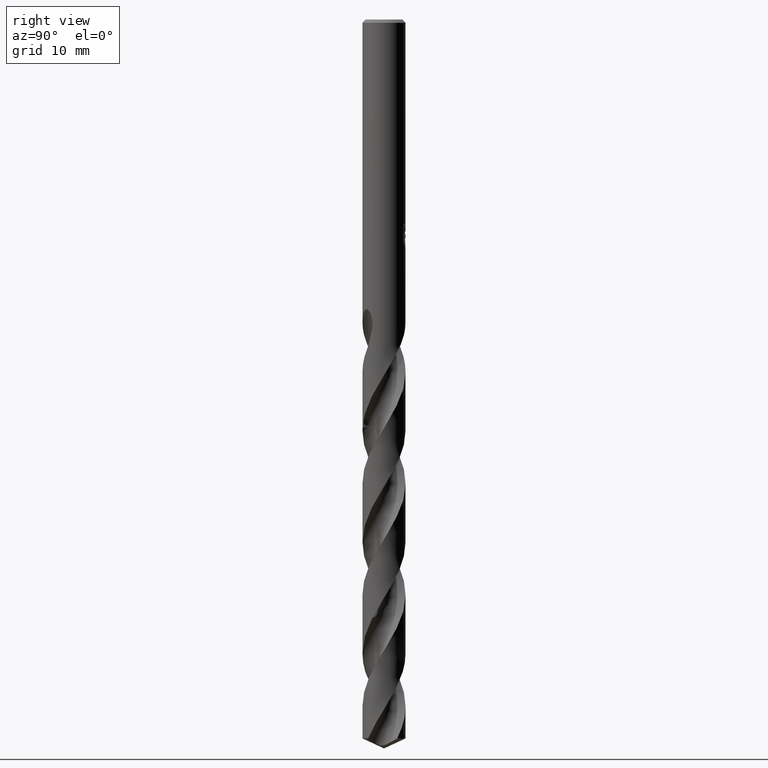
[diagram: clean part render]
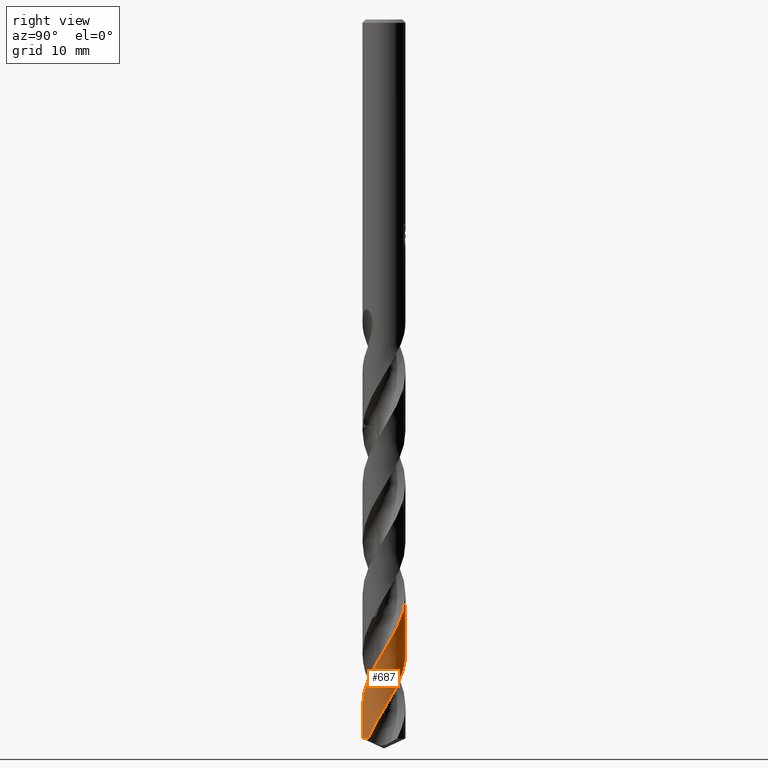
[diagram: same view with one face highlighted and labeled with its STEP entity id]
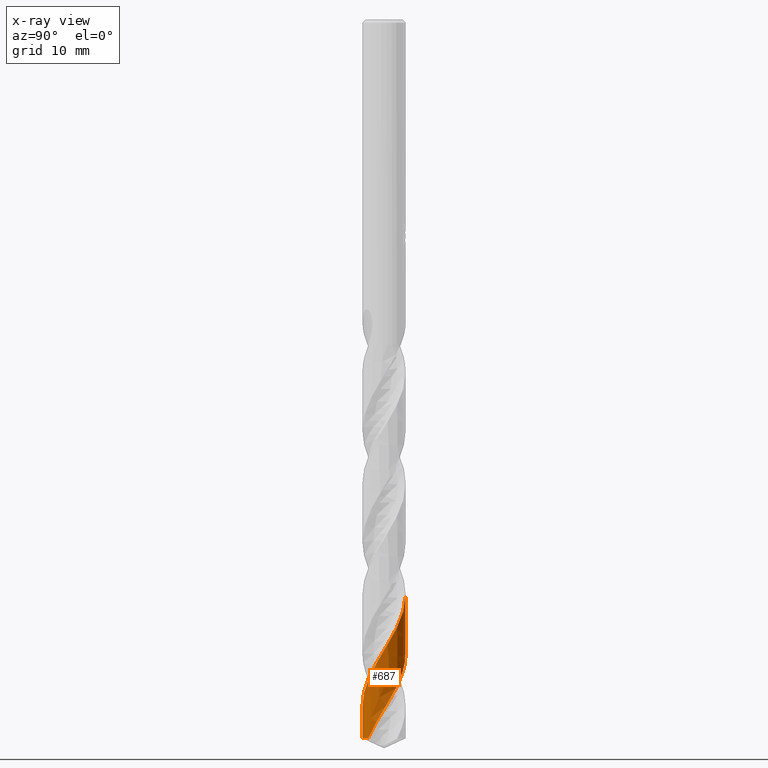
[diagram: x-ray of the same camera — body ghosted, the highlighted face saturated]
A machine part, right view. The second image highlights one B-rep face of the part: STEP entity #687.
The next image is the same camera in x-ray: the body ghosted, the highlighted face saturated — about 0% of this face is hidden behind the body in this view.
In plain terms, the highlighted conical surface has half-angle 0 deg.
Its self-contained STEP definition (entity closure, byte-faithful):
#353=VERTEX_POINT('',#863);
#367=VERTEX_POINT('',#878);
#377=EDGE_CURVE('',#627,#353,#889,.T.);
#441=EDGE_CURVE('',#709,#367,#959,.T.);
#501=EDGE_CURVE('',#555,#367,#1022,.T.);
#555=VERTEX_POINT('',#1080);
#559=EDGE_CURVE('',#627,#709,#1084,.T.);
#627=VERTEX_POINT('',#1157);
#687=ADVANCED_FACE('',(#1224),#1225,.T.);
#709=VERTEX_POINT('',#1250);
#727=EDGE_CURVE('',#555,#353,#1268,.T.);
#863=CARTESIAN_POINT('',(-5.71960297841492E-015,2.74997842835438,-80.8848795938352));
#878=CARTESIAN_POINT('',(-1.60807976975999E-015,-2.74999180907321,-87.60436267066));
#889=B_SPLINE_CURVE_WITH_KNOTS('',3,(#2371,#2372,#2373,#2374,#2375,#2376,#2377,#2378,#2379,#2380,#2381,#2382,#2383,#2384,#2385,#2386,#2387,#2388,#2389,#2390,#2391,#2392,#2393,#2394,#2395,#2396,#2397,#2398,#2399,#2400,#2401,#2402,#2403,#2404,#2405,#2406,#2407,#2408,#2409,#2410,#2411,#2412,#2413,#2414,#2415,#2416,#2417,#2418,#2419,#2420,#2421,#2422,#2423,#2424,#2425,#2426,#2427,#2428,#2429,#2430,#2431,#2432,#2433,#2434,#2435,#2436,#2437,#2438,#2439,#2440,#2441,#2442,#2443,#2444,#2445,#2446,#2447,#2448,#2449,#2450,#2451,#2452,#2453,#2454,#2455,#2456,#2457,#2458,#2459,#2460,#2461,#2462,#2463,#2464,#2465,#2466,#2467,#2468,#2469,#2470,#2471,#2472,#2473,#2474,#2475,#2476,#2477,#2478,#2479,#2480,#2481,#2482,#2483,#2484,#2485,#2486,#2487,#2488,#2489,#2490,#2491,#2492,#2493,#2494,#2495,#2496,#2497,#2498,#2499,#2500,#2501,#2502,#2503,#2504,#2505,#2506,#2507,#2508,#2509,#2510,#2511,#2512,#2513,#2514,#2515,#2516,#2517,#2518,#2519,#2520,#2521,#2522),.UNSPECIFIED.,.F.,.F.,(4,2,2,2,2,2,2,2,2,2,2,2,2,2,2,2,2,2,2,2,2,2,2,2,2,2,2,2,2,2,2,2,2,2,2,2,2,2,2,2,2,2,2,2,2,2,2,2,2,2,2,2,2,2,2,2,2,2,2,2,2,2,2,2,2,2,2,2,2,2,2,2,2,2,2,4),(0.0,0.836457386252124,1.64336906170527,2.58140408176141,3.39202797867914,3.8632473874037,4.603721721074,5.53278731690787,6.46107956921465,7.38981995754916,8.32079524812675,9.21409512558455,10.1498417042334,10.9508738278715,11.4228714910603,12.1586908143471,13.0894914349798,14.018748276323,14.948969436829,15.8809501525893,16.7848942759637,17.7211258031466,18.5306040966142,19.0031230386895,19.7211621967107,20.6530811255594,21.5833301175112,22.514676203557,23.4476488185122,24.3545356493646,25.2916730528357,26.1015012364497,26.5978458442551,27.2951533909863,28.2173604047921,29.136989204381,30.0606514461484,30.9963703254146,32.3768759246345,32.6047586690443,34.3489812172339,34.5726663833572,35.5759238982151,36.0492846451576,36.7773644813372,37.7109175588367,38.6428289742409,39.575755403502,40.5104428497366,41.4158604190065,42.3549204551273,43.1647967079782,43.6387172254562,44.3615965502283,45.2963108807289,46.2292834464353,47.1633848369814,48.0991190162929,49.0103231174039,49.9500821450938,50.8963226501906,51.8153023943905,53.3680154800941,53.4363096654608,54.3998333752756,56.5903315555254,57.4884823687314,57.892101710963,58.1227814348603,58.2561522191751,58.3096711360387,58.3605981844703,58.4297770685207,58.5890840972367,58.8137327770758,59.0959587347506),.UNSPECIFIED.);
#959=LINE('',#3538,#3539);
#1022=B_SPLINE_CURVE_WITH_KNOTS('',3,(#4111,#4112,#4113,#4114,#4115,#4116,#4117,#4118,#4119,#4120,#4121,#4122,#4123,#4124,#4125,#4126,#4127,#4128,#4129,#4130,#4131,#4132,#4133,#4134,#4135,#4136,#4137,#4138,#4139,#4140,#4141,#4142,#4143,#4144,#4145,#4146,#4147,#4148,#4149,#4150,#4151,#4152,#4153,#4154,#4155,#4156,#4157,#4158,#4159,#4160,#4161,#4162,#4163,#4164,#4165,#4166,#4167,#4168,#4169,#4170,#4171,#4172,#4173,#4174,#4175,#4176,#4177,#4178,#4179,#4180,#4181,#4182,#4183,#4184,#4185,#4186,#4187,#4188,#4189,#4190,#4191,#4192,#4193,#4194,#4195,#4196,#4197,#4198,#4199,#4200,#4201,#4202,#4203,#4204,#4205,#4206,#4207,#4208,#4209,#4210,#4211,#4212,#4213,#4214,#4215,#4216,#4217,#4218,#4219,#4220,#4221,#4222,#4223,#4224,#4225,#4226,#4227,#4228,#4229,#4230,#4231,#4232,#4233,#4234,#4235,#4236,#4237,#4238,#4239,#4240,#4241,#4242,#4243,#4244,#4245,#4246,#4247,#4248,#4249,#4250,#4251,#4252,#4253,#4254,#4255,#4256,#4257,#4258,#4259,#4260,#4261,#4262,#4263,#4264,#4265,#4266,#4267,#4268,#4269,#4270,#4271,#4272,#4273,#4274,#4275,#4276,#4277,#4278,#4279,#4280,#4281,#4282,#4283,#4284,#4285,#4286,#4287,#4288),.UNSPECIFIED.,.F.,.F.,(4,2,2,2,2,2,2,2,2,2,2,2,2,2,2,2,2,2,2,2,2,2,2,2,2,2,2,2,2,2,2,2,2,2,2,2,2,2,2,2,2,2,2,2,2,2,2,2,2,2,2,2,2,2,2,2,2,2,2,2,2,2,2,2,2,2,2,2,2,2,2,2,2,2,2,2,2,2,2,2,2,2,2,2,2,2,2,2,4),(0.0,0.142564464926335,0.195317593885702,0.224023885375516,0.243115957859801,0.258847087611125,0.27177534722874,0.28150146606696,0.288816522015289,0.294323264912919,0.298398330140466,0.301346417070672,0.303481231647607,0.305028239749146,0.612496340582462,0.688064514849444,0.729994788082974,0.765503089534661,0.807954763006222,0.88597232417543,0.987359558394659,1.38959699879944,1.62529694879833,1.82441508993662,2.02282725046873,2.98159376323136,3.45326864874835,4.13817357520987,5.19014734161155,6.1412869896122,7.03885048030475,7.54595712700789,9.10838860917941,9.29958604141216,10.7221458189593,11.2209965359554,12.7934865440699,12.9832388732368,14.4238509732513,14.9008667605496,16.4904106765471,16.6754635376237,18.1521278497942,18.5941111077453,19.4270388097549,19.8845646063346,20.3907283462166,21.9518198835266,22.1442897436056,23.5646323973749,24.062102423135,25.6309926543841,25.8210364797228,27.2567912439123,27.7362007260388,29.3195038005211,29.5052991149845,30.9692409019717,31.4198978078598,33.0397056292371,33.0841976348062,34.4172332357347,35.6627049531758,36.6160610523519,36.8074408262787,38.2312438541558,38.7216499338292,40.2908885452704,40.4798666073583,41.9181472941844,42.3920571868528,43.9791757356832,44.0715997117179,45.4059934627898,46.6385372306432,47.5419557506489,47.9436000338371,48.8256886180013,49.2811100708496,49.7265411356416,50.5530760738999,50.9677183482388,52.0458458255627,52.6851232689877,53.7952957054918,54.6393194671857,55.2748098373052,56.2319150301534,57.1942730570665),.UNSPECIFIED.);
#1080=CARTESIAN_POINT('',(3.8911363524277E-014,2.74996352135084,-73.3989321401478));
#1084=CIRCLE('',#5846,2.75);
#1157=CARTESIAN_POINT('',(1.86711589310894,-2.01900426985681,-91.7176539400737));
#1224=FACE_OUTER_BOUND('',#6800,.T.);
#1225=CONICAL_SURFACE('',#6801,2.74995,1.99133157672821E-006);
#1250=CARTESIAN_POINT('',(3.36555142346613E-016,-2.75,-91.7176539400737));
#1268=LINE('',#8297,#8298);
#2371=CARTESIAN_POINT('',(1.86711589310894,-2.01900426985681,-91.7176539400737));
#2372=CARTESIAN_POINT('',(1.97348832410776,-1.92063352146535,-91.4794351155833));
#2373=CARTESIAN_POINT('',(2.07168993665143,-1.81425657569091,-91.2397601274923));
#2374=CARTESIAN_POINT('',(2.24746092450716,-1.59087642698015,-90.7717316369138));
#2375=CARTESIAN_POINT('',(2.32537875396914,-1.47467414759947,-90.5430084548609));
#2376=CARTESIAN_POINT('',(2.47417992004451,-1.21134349710501,-90.0465300885655));
#2377=CARTESIAN_POINT('',(2.54137104454037,-1.06311958562907,-89.7787625505842));
#2378=CARTESIAN_POINT('',(2.64143711244165,-0.777773998736953,-89.2812209196029));
#2379=CARTESIAN_POINT('',(2.6776902396704,-0.642011865994133,-89.0516005506229));
#2380=CARTESIAN_POINT('',(2.71839400513645,-0.423637904516305,-88.6872264660727));
#2381=CARTESIAN_POINT('',(2.72975607696797,-0.342831185934737,-88.5534243253596));
#2382=CARTESIAN_POINT('',(2.74969253361985,-0.134309706550796,-88.208682611026));
#2383=CARTESIAN_POINT('',(2.7529709098609,-0.00618867504323306,-87.9970845975155));
#2384=CARTESIAN_POINT('',(2.74016449527551,0.282513923923594,-87.5219381015755));
#2385=CARTESIAN_POINT('',(2.71895868886807,0.442280947547396,-87.259070246741));
#2386=CARTESIAN_POINT('',(2.64884103334691,0.756267866436225,-86.7307084944555));
#2387=CARTESIAN_POINT('',(2.60016012238169,0.909613389402136,-86.4654672058952));
#2388=CARTESIAN_POINT('',(2.47658674393097,1.20613697290641,-85.9371924739245));
#2389=CARTESIAN_POINT('',(2.40188525666916,1.348792501731,-85.6745228091148));
#2390=CARTESIAN_POINT('',(2.22809565736244,1.61987732812251,-85.1457726011527));
#2391=CARTESIAN_POINT('',(2.12946372409963,1.74748506161235,-84.8799218242401));
#2392=CARTESIAN_POINT('',(1.91553391135888,1.97913882879195,-84.3612452605875));
#2393=CARTESIAN_POINT('',(1.80134565722468,2.08362163463511,-84.1086366774832));
#2394=CARTESIAN_POINT('',(1.55059760343743,2.27690420881935,-83.5889729063576));
#2395=CARTESIAN_POINT('',(1.41401671958299,2.36411879486403,-83.322035027667));
#2396=CARTESIAN_POINT('',(1.14813541903799,2.50266028399584,-82.8286069522669));
#2397=CARTESIAN_POINT('',(1.02073241923637,2.55728626425844,-82.6020365244599));
#2398=CARTESIAN_POINT('',(0.812320562557173,2.62853578466531,-82.2407208830432));
#2399=CARTESIAN_POINT('',(0.734001587057047,2.65146630760141,-82.1069064794119));
#2400=CARTESIAN_POINT('',(0.531524577721047,2.70111144222572,-81.7637973592613));
#2401=CARTESIAN_POINT('',(0.406207327793274,2.72278545007065,-81.5538638802091));
#2402=CARTESIAN_POINT('',(0.119626188515085,2.75208252350143,-81.0802621886434));
#2403=CARTESIAN_POINT('',(-0.0415911379723009,2.7543722224077,-80.8172899543795));
#2404=CARTESIAN_POINT('',(-0.362419927446169,2.73072449702645,-80.2889326993897));
#2405=CARTESIAN_POINT('',(-0.521146842412686,2.70491116751674,-80.0237984244191));
#2406=CARTESIAN_POINT('',(-0.832474585125438,2.62586599828204,-79.4956017661688));
#2407=CARTESIAN_POINT('',(-0.984512706253463,2.5727348765212,-79.2329000222536));
#2408=CARTESIAN_POINT('',(-1.2779829271324,2.44030363071195,-78.7042098506618));
#2409=CARTESIAN_POINT('',(-1.41854640888579,2.36134682202239,-78.4384547979319));
#2410=CARTESIAN_POINT('',(-1.68019895281117,2.18257300952965,-77.9172209814386));
#2411=CARTESIAN_POINT('',(-1.80137813689673,2.08369664459919,-77.6619980085169));
#2412=CARTESIAN_POINT('',(-2.02979308334775,1.86238128427743,-77.1399117918717));
#2413=CARTESIAN_POINT('',(-2.1356725847376,1.73991186001716,-76.8731888851256));
#2414=CARTESIAN_POINT('',(-2.31176870206648,1.49583880618467,-76.3779161453719));
#2415=CARTESIAN_POINT('',(-2.38477181209177,1.37650000288108,-76.149293015258));
#2416=CARTESIAN_POINT('',(-2.48561022336924,1.17929303464042,-75.7859227952121));
#2417=CARTESIAN_POINT('',(-2.51947541389551,1.10507869396247,-75.6521382103781));
#2418=CARTESIAN_POINT('',(-2.59629161191943,0.914823987698727,-75.3143703164224));
#2419=CARTESIAN_POINT('',(-2.63485026262416,0.797025576872959,-75.1097636427518));
#2420=CARTESIAN_POINT('',(-2.70496378580723,0.52093177189912,-74.6414478344349));
#2421=CARTESIAN_POINT('',(-2.73081304041644,0.361781846675165,-74.378469251361));
#2422=CARTESIAN_POINT('',(-2.75435097502092,0.0409645020248983,-73.8501320560387));
#2423=CARTESIAN_POINT('',(-2.75203704267935,-0.119811538723776,-73.5850254964707));
#2424=CARTESIAN_POINT('',(-2.71939230843823,-0.43934402969955,-73.0568468823674));
#2425=CARTESIAN_POINT('',(-2.68907514434034,-0.597524680507935,-72.7941353935549));
#2426=CARTESIAN_POINT('',(-2.60100711110446,-0.907197622427345,-72.2654615308714));
#2427=CARTESIAN_POINT('',(-2.5434723494917,-1.05778341058068,-71.9997329131356));
#2428=CARTESIAN_POINT('',(-2.40477039068228,-1.34305785039645,-71.477991216628));
#2429=CARTESIAN_POINT('',(-2.32449695862755,-1.4776670003735,-71.2222413165229));
#2430=CARTESIAN_POINT('',(-2.13872280935251,-1.7361760643747,-70.699670331496));
#2431=CARTESIAN_POINT('',(-2.0330440706123,-1.85877485204723,-70.4329952309955));
#2432=CARTESIAN_POINT('',(-1.81738236950346,-2.06853384360811,-69.9379393526147));
#2433=CARTESIAN_POINT('',(-1.71006057097996,-2.1581202933432,-69.7094799279222));
#2434=CARTESIAN_POINT('',(-1.52651203291348,-2.28896326974743,-69.3396814502952));
#2435=CARTESIAN_POINT('',(-1.45457411740441,-2.33532959709484,-69.1993286141253));
#2436=CARTESIAN_POINT('',(-1.27691476964934,-2.43847085245507,-68.8610427711529));
#2437=CARTESIAN_POINT('',(-1.16918665353287,-2.49193077170948,-68.6625347174169));
#2438=CARTESIAN_POINT('',(-0.91132776015633,-2.59942904556933,-68.2032591443317));
#2439=CARTESIAN_POINT('',(-0.759427349252922,-2.64780023655525,-67.9432140634454));
#2440=CARTESIAN_POINT('',(-0.449290631793431,-2.71763991978224,-67.4210963390297));
#2441=CARTESIAN_POINT('',(-0.291925461889638,-2.73900242968042,-67.1592485119289));
#2442=CARTESIAN_POINT('',(0.0254040712052934,-2.75443724953332,-66.6367204950457));
#2443=CARTESIAN_POINT('',(0.184864505869837,-2.74835393717513,-66.3763817100373));
#2444=CARTESIAN_POINT('',(0.503198070420505,-2.70833484886155,-65.8496159828913));
#2445=CARTESIAN_POINT('',(0.661083247925665,-2.67416267744204,-65.5833878383906));
#2446=CARTESIAN_POINT('',(1.0420200039859,-2.55595648416577,-64.9271980058558));
#2447=CARTESIAN_POINT('',(1.25878766696291,-2.45641061064201,-64.5407985677468));
#2448=CARTESIAN_POINT('',(1.49305449789534,-2.30965790834451,-64.0850052083597));
#2449=CARTESIAN_POINT('',(1.52574109390383,-2.28819555541519,-64.0203728268317));
#2450=CARTESIAN_POINT('',(1.80450937885896,-2.09653545391934,-63.4621016831514));
#2451=CARTESIAN_POINT('',(2.02157943262236,-1.88806251892635,-62.9779415883074));
#2452=CARTESIAN_POINT('',(2.22381641263497,-1.61811299107523,-62.4212512182135));
#2453=CARTESIAN_POINT('',(2.24615445072298,-1.58696147746042,-62.357904209836));
#2454=CARTESIAN_POINT('',(2.36542004738687,-1.41304519754708,-62.010146154882));
#2455=CARTESIAN_POINT('',(2.44951234170921,-1.26174792211607,-61.7277052999608));
#2456=CARTESIAN_POINT('',(2.55169402006649,-1.0284412109155,-61.3098655419406));
#2457=CARTESIAN_POINT('',(2.5810631843926,-0.952319507599595,-61.1760662730472));
#2458=CARTESIAN_POINT('',(2.64684917012808,-0.756337257267905,-60.8357847017795));
#2459=CARTESIAN_POINT('',(2.67857150979356,-0.634948135646988,-60.6286729778619));
#2460=CARTESIAN_POINT('',(2.73185322527692,-0.353578997350754,-60.1578671767519));
#2461=CARTESIAN_POINT('',(2.74786528311634,-0.193141197688439,-59.8948876146059));
#2462=CARTESIAN_POINT('',(2.75162729036683,0.12852057830911,-59.3665395552784));
#2463=CARTESIAN_POINT('',(2.73942842981187,0.288853129331154,-59.1014213749645));
#2464=CARTESIAN_POINT('',(2.68719369837046,0.605759558939409,-58.5732470575908));
#2465=CARTESIAN_POINT('',(2.64720882256548,0.761763688048801,-58.3105500927024));
#2466=CARTESIAN_POINT('',(2.54026398308407,1.06543385972138,-57.7818698881248));
#2467=CARTESIAN_POINT('',(2.4735721482241,1.21220547492689,-57.5161197022145));
#2468=CARTESIAN_POINT('',(2.3178435588139,1.48795214286348,-56.9952230415116));
#2469=CARTESIAN_POINT('',(2.22978041237471,1.61695438604363,-56.7403263748357));
#2470=CARTESIAN_POINT('',(2.02890329297621,1.86329028464873,-56.2185481872677));
#2471=CARTESIAN_POINT('',(1.9159136469405,1.97925252148027,-55.9518039715251));
#2472=CARTESIAN_POINT('',(1.68801861034364,2.17533382613481,-55.4570655003883));
#2473=CARTESIAN_POINT('',(1.57564036354089,2.25807932861001,-55.228993337245));
#2474=CARTESIAN_POINT('',(1.38809355861517,2.37528059515418,-54.8661776930846));
#2475=CARTESIAN_POINT('',(1.31705344487227,2.41538758303067,-54.7323892851067));
#2476=CARTESIAN_POINT('',(1.13366087651986,2.5084525632858,-54.3938467431391));
#2477=CARTESIAN_POINT('',(1.01915919641534,2.55712477775109,-54.1884679097344));
#2478=CARTESIAN_POINT('',(0.749599918486091,2.65067384170455,-53.7193741813225));
#2479=CARTESIAN_POINT('',(0.593227113022507,2.68999628499788,-53.4563852957692));
#2480=CARTESIAN_POINT('',(0.275585155486176,2.74079349028624,-52.9280453135462));
#2481=CARTESIAN_POINT('',(0.115203995879344,2.75219172941433,-52.6629456552913));
#2482=CARTESIAN_POINT('',(-0.20593892250372,2.74690316944959,-52.1347752907658));
#2483=CARTESIAN_POINT('',(-0.366125906497072,2.73018000071438,-51.8720645336041));
#2484=CARTESIAN_POINT('',(-0.682174580210448,2.66883000173377,-51.3433904399941));
#2485=CARTESIAN_POINT('',(-0.837113747107122,2.6243412933094,-51.0776627612459));
#2486=CARTESIAN_POINT('',(-1.13342616067689,2.51036399811325,-50.5554578917978));
#2487=CARTESIAN_POINT('',(-1.27462575144556,2.44171485545686,-50.2992511232343));
#2488=CARTESIAN_POINT('',(-1.54818497949652,2.27844804342742,-49.7762559791946));
#2489=CARTESIAN_POINT('',(-1.67929205456174,2.18358715582241,-49.5096098881145));
#2490=CARTESIAN_POINT('',(-1.92398589208203,1.97147343690008,-48.9767304424985));
#2491=CARTESIAN_POINT('',(-2.03717291945119,1.85430349458077,-48.7109830749191));
#2492=CARTESIAN_POINT('',(-2.23872210675098,1.60472066139329,-48.1844209297596));
#2493=CARTESIAN_POINT('',(-2.32708668578351,1.47360756445375,-47.9239702273323));
#2494=CARTESIAN_POINT('',(-2.53297492414193,1.10314931235865,-47.2262490339175));
#2495=CARTESIAN_POINT('',(-2.62768106389413,0.853127191732628,-46.7943830806558));
#2496=CARTESIAN_POINT('',(-2.68755006159,0.582420882010107,-46.3365933874897));
#2497=CARTESIAN_POINT('',(-2.68999689354394,0.571013447360455,-46.3173177952848));
#2498=CARTESIAN_POINT('',(-2.72596374439028,0.397952222686442,-46.0255045900997));
#2499=CARTESIAN_POINT('',(-2.74500867643035,0.23329728119453,-45.7548091648364));
#2500=CARTESIAN_POINT('',(-2.75833337944969,-0.309411161401137,-44.8646651237918));
#2501=CARTESIAN_POINT('',(-2.68999937611433,-0.684889009531236,-44.2449612854252));
#2502=CARTESIAN_POINT('',(-2.48909326369192,-1.17917679398394,-43.3737992794033));
#2503=CARTESIAN_POINT('',(-2.42005715854074,-1.31428609319808,-43.1308559737813));
#2504=CARTESIAN_POINT('',(-2.30727525295812,-1.49763119728736,-42.7707037972657));
#2505=CARTESIAN_POINT('',(-2.27090760179485,-1.55211859328858,-42.6587994309084));
#2506=CARTESIAN_POINT('',(-2.21198084320294,-1.63415139826114,-42.48098477645));
#2507=CARTESIAN_POINT('',(-2.19025600997404,-1.66313430631024,-42.4161362416606));
#2508=CARTESIAN_POINT('',(-2.15556894635233,-1.70760309311929,-42.3131886121708));
#2509=CARTESIAN_POINT('',(-2.14556047821673,-1.72020454083201,-42.2831535892229));
#2510=CARTESIAN_POINT('',(-2.12431690214171,-1.74623257473709,-42.2242609503884));
#2511=CARTESIAN_POINT('',(-2.11811863841504,-1.75374698732301,-42.207469040514));
#2512=CARTESIAN_POINT('',(-2.10578836485469,-1.76853070951757,-42.1748317806412));
#2513=CARTESIAN_POINT('',(-2.09966985979724,-1.77579165014692,-42.1589857406703));
#2514=CARTESIAN_POINT('',(-2.08497972670889,-1.79303838000676,-42.1217656119302));
#2515=CARTESIAN_POINT('',(-2.07631921602032,-1.80306295718833,-42.1004568037302));
#2516=CARTESIAN_POINT('',(-2.04702624456344,-1.83646367751179,-42.0304768408029));
#2517=CARTESIAN_POINT('',(-2.02554004763532,-1.86017077825483,-41.9824294469879));
#2518=CARTESIAN_POINT('',(-1.97095400366498,-1.91819365179451,-41.8681778664895));
#2519=CARTESIAN_POINT('',(-1.93685372034497,-1.95271571388526,-41.802920818448));
#2520=CARTESIAN_POINT('',(-1.85453847092492,-2.03141816376925,-41.6585854597098));
#2521=CARTESIAN_POINT('',(-1.8052847750046,-2.07548124143783,-41.5808468826578));
#2522=CARTESIAN_POINT('',(-1.75231167767761,-2.11928144639505,-41.505));
#3538=CARTESIAN_POINT('',(3.36549019314844E-016,-2.74995,-66.6088269700369));
#3539=VECTOR('',#8888,1.0);
#4111=CARTESIAN_POINT('',(-1.91139197779013,1.9770004481535,-41.505));
#4112=CARTESIAN_POINT('',(-1.89452019894465,1.99331243687724,-41.546322559862));
#4113=CARTESIAN_POINT('',(-1.8773760687052,2.00947072997189,-41.5877008333829));
#4114=CARTESIAN_POINT('',(-1.85344146229617,2.0314485870505,-41.6443354695678));
#4115=CARTESIAN_POINT('',(-1.84693730286709,2.03736400878844,-41.6596155665346));
#4116=CARTESIAN_POINT('',(-1.83682055007665,2.04647631432973,-41.6832011919532));
#4117=CARTESIAN_POINT('',(-1.83324269143578,2.04968204665946,-41.6915078792918));
#4118=CARTESIAN_POINT('',(-1.82726182380396,2.05501258547656,-41.7053345451356));
#4119=CARTESIAN_POINT('',(-1.82486705099462,2.0571394813461,-41.7108551903272));
#4120=CARTESIAN_POINT('',(-1.82048768480774,2.061015283391,-41.7209219565498));
#4121=CARTESIAN_POINT('',(-1.81850529772705,2.06276464092552,-41.7254680878522));
#4122=CARTESIAN_POINT('',(-1.81488595361633,2.06594924303017,-41.7337484006225));
#4123=CARTESIAN_POINT('',(-1.81325049729257,2.06738481842406,-41.7374826670968));
#4124=CARTESIAN_POINT('',(-1.81037958717431,2.06989881806504,-41.7440249381058));
#4125=CARTESIAN_POINT('',(-1.80914544296618,2.07097758782979,-41.7468331550616));
#4126=CARTESIAN_POINT('',(-1.80698021741071,2.07286680290305,-41.7517526459405));
#4127=CARTESIAN_POINT('',(-1.80604987164284,2.07367745210983,-41.7538640664128));
#4128=CARTESIAN_POINT('',(-1.80441753703493,2.07509784022159,-41.7575644862963));
#4129=CARTESIAN_POINT('',(-1.80371596041734,2.07570769787994,-41.759153579761));
#4130=CARTESIAN_POINT('',(-1.80249429110074,2.0767685674074,-41.7619183531224));
#4131=CARTESIAN_POINT('',(-1.80197444069084,2.07721965146254,-41.7630940943434));
#4132=CARTESIAN_POINT('',(-1.80107800989992,2.07799691142193,-41.7651202699936));
#4133=CARTESIAN_POINT('',(-1.80070156843929,2.07832312995865,-41.7659707426146));
#4134=CARTESIAN_POINT('',(-1.8000522721551,2.07888549146253,-41.7674369928943));
#4135=CARTESIAN_POINT('',(-1.79977948980859,2.07912165684795,-41.7680527909802));
#4136=CARTESIAN_POINT('',(-1.79930889740938,2.07952891718497,-41.7691147890675));
#4137=CARTESIAN_POINT('',(-1.79911112506162,2.07970002411286,-41.7695610004167));
#4138=CARTESIAN_POINT('',(-1.75959777046337,2.11387598194794,-41.8586891919527));
#4139=CARTESIAN_POINT('',(-1.71946466683354,2.14668633515468,-41.9449529050429));
#4140=CARTESIAN_POINT('',(-1.66660920840859,2.18735981229377,-42.0537438288855));
#4141=CARTESIAN_POINT('',(-1.65609882128097,2.19532872558067,-42.0751586246347));
#4142=CARTESIAN_POINT('',(-1.6396089105831,2.20764427325495,-42.1084499978389));
#4143=CARTESIAN_POINT('',(-1.63369956519936,2.21202097017374,-42.1203202128605));
#4144=CARTESIAN_POINT('',(-1.62273710215797,2.22007212436577,-42.1422375954398));
#4145=CARTESIAN_POINT('',(-1.61769346989042,2.22374999420755,-42.1522815273892));
#4146=CARTESIAN_POINT('',(-1.60658100683062,2.23179539212186,-42.1743297077499));
#4147=CARTESIAN_POINT('',(-1.60050724139076,2.23615520526663,-42.1863279028402));
#4148=CARTESIAN_POINT('',(-1.58320425237516,2.24846866824913,-42.2203737169559));
#4149=CARTESIAN_POINT('',(-1.57193112829269,2.25636441887023,-42.2423950706567));
#4150=CARTESIAN_POINT('',(-1.54585195494962,2.27433964796674,-42.2930542195775));
#4151=CARTESIAN_POINT('',(-1.53085882589915,2.28446183377091,-42.321959424847));
#4152=CARTESIAN_POINT('',(-1.45492810715881,2.33461498474327,-42.4681670518041));
#4153=CARTESIAN_POINT('',(-1.393135945426,2.37197409305707,-42.5859471283539));
#4154=CARTESIAN_POINT('',(-1.293752413452,2.42691760203032,-42.772366339066));
#4155=CARTESIAN_POINT('',(-1.25662566966195,2.44634556883352,-42.8413706308153));
#4156=CARTESIAN_POINT('',(-1.18745072222923,2.48055957893909,-42.9685973407284));
#4157=CARTESIAN_POINT('',(-1.15547419549343,2.4956151925139,-43.0268951762574));
#4158=CARTESIAN_POINT('',(-1.09106945214206,2.524435716862,-43.1432193457334));
#4159=CARTESIAN_POINT('',(-1.05863661233601,2.53820781815206,-43.2012672847261));
#4160=CARTESIAN_POINT('',(-0.867956971846645,2.61488400517195,-43.539833952651));
#4161=CARTESIAN_POINT('',(-0.704265996133905,2.66366209757058,-43.8193543461042));
#4162=CARTESIAN_POINT('',(-0.45460849117355,2.71336630071767,-44.237512970623));
#4163=CARTESIAN_POINT('',(-0.371591539220037,2.7259754966058,-44.3752953524375));
#4164=CARTESIAN_POINT('',(-0.166966813760909,2.74753592602959,-44.7134339468412));
#4165=CARTESIAN_POINT('',(-0.0451629784764577,2.75222682480888,-44.9135914627125));
#4166=CARTESIAN_POINT('',(0.263278279016951,2.7436478873567,-45.4216127055615));
#4167=CARTESIAN_POINT('',(0.449218938595483,2.71941747090501,-45.7285421637319));
#4168=CARTESIAN_POINT('',(0.796097572919398,2.63758792057319,-46.3141131830356));
#4169=CARTESIAN_POINT('',(0.956797035229012,2.5836280541283,-46.5915172284435));
#4170=CARTESIAN_POINT('',(1.25739789266429,2.45080006237741,-47.1321569409517));
#4171=CARTESIAN_POINT('',(1.3975104137602,2.37370557003446,-47.3941153332132));
#4172=CARTESIAN_POINT('',(1.60514988886453,2.23464812715247,-47.8047784533605));
#4173=CARTESIAN_POINT('',(1.67756718660521,2.18080689824973,-47.9528444719327));
#4174=CARTESIAN_POINT('',(1.96171883580035,1.94701357235644,-48.558077837492));
#4175=CARTESIAN_POINT('',(2.1483742111868,1.73891473530768,-49.0128100008873));
#4176=CARTESIAN_POINT('',(2.31930961228909,1.47783572888063,-49.5255538042961));
#4177=CARTESIAN_POINT('',(2.3374118639317,1.44903456890443,-49.5814386385348));
#4178=CARTESIAN_POINT('',(2.48564458165594,1.20318622167214,-50.0534130674782));
#4179=CARTESIAN_POINT('',(2.5858234257643,0.969369141671657,-50.4682751953327));
#4180=CARTESIAN_POINT('',(2.67600482351781,0.63948129609748,-51.0302384227576));
#4181=CARTESIAN_POINT('',(2.69524834292109,0.552781257627934,-51.1759495276212));
#4182=CARTESIAN_POINT('',(2.75759897445741,0.189626883054951,-51.7819542628848));
#4183=CARTESIAN_POINT('',(2.76260759553527,-0.091819975034264,-52.2397685863663));
#4184=CARTESIAN_POINT('',(2.72048727917561,-0.402695068698956,-52.7552571378613));
#4185=CARTESIAN_POINT('',(2.71533687065991,-0.436073219482843,-52.8107460442885));
#4186=CARTESIAN_POINT('',(2.66581815100392,-0.721954522506067,-53.2877907482169));
#4187=CARTESIAN_POINT('',(2.58692555542658,-0.967318679392083,-53.7080002213893));
#4188=CARTESIAN_POINT('',(2.43814072237946,-1.27466647943842,-54.2690856670616));
#4189=CARTESIAN_POINT('',(2.39762223327898,-1.34933517080329,-54.4084916158881));
#4190=CARTESIAN_POINT('',(2.20744921309202,-1.66411711986381,-55.013355234866));
#4191=CARTESIAN_POINT('',(2.02460796917827,-1.88233980142614,-55.4762173127312));
#4192=CARTESIAN_POINT('',(1.78684276580957,-2.0905472551873,-55.9955355430632));
#4193=CARTESIAN_POINT('',(1.76166820040205,-2.11180485008965,-56.0496780525045));
#4194=CARTESIAN_POINT('',(1.53226125237607,-2.29856296480606,-56.536093267429));
#4195=CARTESIAN_POINT('',(1.30555367266187,-2.43451095084771,-56.9667899587351));
#4196=CARTESIAN_POINT('',(0.99033737317251,-2.56662354406787,-57.5283741995827));
#4197=CARTESIAN_POINT('',(0.916480507518383,-2.59391235237275,-57.6576179326012));
#4198=CARTESIAN_POINT('',(0.7004103406093,-2.66337056138074,-58.0309182328734));
#4199=CARTESIAN_POINT('',(0.555784841262025,-2.6972642361482,-58.274648944555));
#4200=CARTESIAN_POINT('',(0.328557571847412,-2.73145108669889,-58.6524929507708));
#4201=CARTESIAN_POINT('',(0.24747618904882,-2.73998883468857,-58.7863594201147));
#4202=CARTESIAN_POINT('',(0.0761038285762037,-2.75036038513937,-59.0684728381081));
#4203=CARTESIAN_POINT('',(-0.0140881997681101,-2.75137568114687,-59.2164486636435));
#4204=CARTESIAN_POINT('',(-0.38191072497728,-2.7374362665346,-59.8218075597368));
#4205=CARTESIAN_POINT('',(-0.656614275240054,-2.6848444066247,-60.2767818887846));
#4206=CARTESIAN_POINT('',(-0.951119460714787,-2.58044748700573,-60.7902024516057));
#4207=CARTESIAN_POINT('',(-0.983218512056871,-2.56838834553399,-60.8465357017339));
#4208=CARTESIAN_POINT('',(-1.25022075391601,-2.46234182359027,-61.3188730856939));
#4209=CARTESIAN_POINT('',(-1.47144741973462,-2.33689936133515,-61.733644457795));
#4210=CARTESIAN_POINT('',(-1.74278511661209,-2.1290230654324,-62.2953085201068));
#4211=CARTESIAN_POINT('',(-1.81049421401846,-2.07174867981099,-62.4408109991013));
#4212=CARTESIAN_POINT('',(-2.07971142040732,-1.82073837673807,-63.0461686223811));
#4213=CARTESIAN_POINT('',(-2.25397004472046,-1.60000855881077,-63.5035591652643));
#4214=CARTESIAN_POINT('',(-2.4086681111928,-1.32727625554998,-64.0187708210503));
#4215=CARTESIAN_POINT('',(-2.42483191704883,-1.2975108222614,-64.0744191778124));
#4216=CARTESIAN_POINT('',(-2.5583654142269,-1.04039900022735,-64.5507658413067));
#4217=CARTESIAN_POINT('',(-2.64407302408513,-0.797887831547067,-64.9701351485895));
#4218=CARTESIAN_POINT('',(-2.71200054636629,-0.463220881216917,-65.5312532555635));
#4219=CARTESIAN_POINT('',(-2.72508284128564,-0.378730764344342,-65.6715445744862));
#4220=CARTESIAN_POINT('',(-2.76435434615854,-0.0132509193676097,-66.2760918752615));
#4221=CARTESIAN_POINT('',(-2.75115194646774,0.270398145284336,-66.7377810884637));
#4222=CARTESIAN_POINT('',(-2.68838500444646,0.579582611126404,-67.2561867099614));
#4223=CARTESIAN_POINT('',(-2.68120879814388,0.611922404812745,-67.3106180868869));
#4224=CARTESIAN_POINT('',(-2.61232576958827,0.89782820339779,-67.7941795137482));
#4225=CARTESIAN_POINT('',(-2.51536092736879,1.14166313981336,-68.2218017357878));
#4226=CARTESIAN_POINT('',(-2.34544268550762,1.4379185120212,-68.7829661960873));
#4227=CARTESIAN_POINT('',(-2.30242576734552,1.50583525303222,-68.9149174136047));
#4228=CARTESIAN_POINT('',(-2.09146934270962,1.80869920568228,-69.5219838211552));
#4229=CARTESIAN_POINT('',(-1.89005129107322,2.01828312222549,-69.9942577568655));
#4230=CARTESIAN_POINT('',(-1.65332026469279,2.19746729722722,-70.4821421320658));
#4231=CARTESIAN_POINT('',(-1.64697184766445,2.20222938733091,-70.49518425558));
#4232=CARTESIAN_POINT('',(-1.44978837992006,2.3488117778249,-70.8990250493168));
#4233=CARTESIAN_POINT('',(-1.24131965474567,2.46535306155055,-71.2890970319853));
#4234=CARTESIAN_POINT('',(-0.814126777290675,2.63606886149301,-72.0451366914149));
#4235=CARTESIAN_POINT('',(-0.598615124816336,2.69318670515384,-72.4090858383825));
#4236=CARTESIAN_POINT('',(-0.210330123884972,2.74717065031874,-73.0539841057724));
#4237=CARTESIAN_POINT('',(-0.040104691466741,2.75492793118216,-73.3328005567858));
#4238=CARTESIAN_POINT('',(0.163926882460186,2.7452862186325,-73.668424135872));
#4239=CARTESIAN_POINT('',(0.197995267953163,2.74303958812548,-73.724515604953));
#4240=CARTESIAN_POINT('',(0.485078046834413,2.71873304500988,-74.1981971660842));
#4241=CARTESIAN_POINT('',(0.734069369117655,2.66233568352507,-74.6145216415102));
#4242=CARTESIAN_POINT('',(1.05367243296846,2.54160465932048,-75.1758963181082));
#4243=CARTESIAN_POINT('',(1.13399878409105,2.50679464297229,-75.3195334438459));
#4244=CARTESIAN_POINT('',(1.4637512141659,2.34480533716712,-75.92375221382));
#4245=CARTESIAN_POINT('',(1.69479843504716,2.18367995018104,-76.3818548132345));
#4246=CARTESIAN_POINT('',(1.92196309808986,1.96711299133665,-76.8975632403914));
#4247=CARTESIAN_POINT('',(1.94594213334346,1.94339514630298,-76.9529761674268));
#4248=CARTESIAN_POINT('',(2.14860065845602,1.73543369114385,-77.430406338967));
#4249=CARTESIAN_POINT('',(2.30118755585149,1.52736235176713,-77.8510672080041));
#4250=CARTESIAN_POINT('',(2.46273154553023,1.22656752863443,-78.4120813489525));
#4251=CARTESIAN_POINT('',(2.4992907522075,1.15024052716407,-78.5509572496501));
#4252=CARTESIAN_POINT('',(2.64271167348718,0.811572143854212,-79.1558418568152));
#4253=CARTESIAN_POINT('',(2.71225337390499,0.535143667784105,-79.6192418101583));
#4254=CARTESIAN_POINT('',(2.7398394151482,0.236485271694421,-80.1120791113363));
#4255=CARTESIAN_POINT('',(2.74120926586388,0.220039325169047,-80.1391949841227));
#4256=CARTESIAN_POINT('',(2.76007089886348,-0.0340331075264114,-80.5579491735598));
#4257=CARTESIAN_POINT('',(2.74675344920956,-0.27300854040231,-80.9488383135013));
#4258=CARTESIAN_POINT('',(2.66218239798292,-0.723630146843412,-81.7023150257345));
#4259=CARTESIAN_POINT('',(2.59575145807475,-0.934271636325922,-82.0629057625984));
#4260=CARTESIAN_POINT('',(2.43845309370691,-1.2815410993732,-82.6900589811004));
#4261=CARTESIAN_POINT('',(2.35910583030739,-1.42234604690001,-82.9546512168807));
#4262=CARTESIAN_POINT('',(2.22724355873169,-1.61460278681352,-83.3377036238239));
#4263=CARTESIAN_POINT('',(2.18438022890932,-1.67213413205842,-83.4555214257664));
#4264=CARTESIAN_POINT('',(2.04039941155094,-1.85039877041875,-83.8324542197265));
#4265=CARTESIAN_POINT('',(1.93110256594104,-1.96419797614775,-84.0912122137425));
#4266=CARTESIAN_POINT('',(1.75147972896309,-2.1216394976343,-84.4838966753291));
#4267=CARTESIAN_POINT('',(1.68795778627146,-2.17251947180627,-84.6175045736147));
#4268=CARTESIAN_POINT('',(1.55800207282875,-2.26746279388167,-84.8819467601498));
#4269=CARTESIAN_POINT('',(1.49176423947477,-2.31157752572779,-85.0125713556832));
#4270=CARTESIAN_POINT('',(1.29747115649473,-2.42915133552563,-85.3860884011779));
#4271=CARTESIAN_POINT('',(1.1652537665042,-2.49527628948035,-85.6286558270349));
#4272=CARTESIAN_POINT('',(0.959684341616293,-2.57816335095108,-85.9931283841913));
#4273=CARTESIAN_POINT('',(0.889902750183392,-2.60307510832562,-86.1148159676451));
#4274=CARTESIAN_POINT('',(0.635302185109514,-2.68252481089503,-86.5530888174706));
#4275=CARTESIAN_POINT('',(0.445973947766422,-2.72040363830631,-86.8688493151871));
#4276=CARTESIAN_POINT('',(0.140704579207243,-2.74875939927563,-87.3732408673112));
#4277=CARTESIAN_POINT('',(0.0264815829042655,-2.75223499129477,-87.5607903103819));
#4278=CARTESIAN_POINT('',(-0.285911125255888,-2.74227163759769,-88.0744414607739));
#4279=CARTESIAN_POINT('',(-0.482799004175207,-2.7145233517136,-88.3993209744671));
#4280=CARTESIAN_POINT('',(-0.820949104158097,-2.6289179507807,-88.9732949921072));
#4281=CARTESIAN_POINT('',(-0.963779053486516,-2.57998869771489,-89.2207553450297));
#4282=CARTESIAN_POINT('',(-1.20596289494806,-2.47406987801199,-89.6551587494388));
#4283=CARTESIAN_POINT('',(-1.30703673208299,-2.42219140220566,-89.8414458403145));
#4284=CARTESIAN_POINT('',(-1.55152535339812,-2.27694138262449,-90.3091767691843));
#4285=CARTESIAN_POINT('',(-1.6900571742886,-2.17610804432848,-90.5898246372419));
#4286=CARTESIAN_POINT('',(-1.9473741958004,-1.94930791592437,-91.15342740863));
#4287=CARTESIAN_POINT('',(-2.06532328484713,-1.82384907313026,-91.4348715718237));
#4288=CARTESIAN_POINT('',(-2.17074904603872,-1.68829753868268,-91.7176539400737));
#5846=AXIS2_PLACEMENT_3D('',#9013,#9014,#9015);
#6800=EDGE_LOOP('',(#9153,#9154,#9155,#9156,#9157));
#6801=AXIS2_PLACEMENT_3D('',#9158,#9159,#9160);
#8297=CARTESIAN_POINT('',(-3.36972229223925E-016,2.74995,-66.6088269700369));
#8298=VECTOR('',#9210,1.0);
#8888=DIRECTION('',(-2.43859730142689E-022,1.9913315767269E-006,0.999999999998017));
#9013=CARTESIAN_POINT('',(0.0,0.0,-91.7176539400737));
#9014=DIRECTION('',(0.0,0.0,-1.0));
#9015=DIRECTION('',(0.0,1.0,0.0));
#9153=ORIENTED_EDGE('',*,*,#727,.F.);
#9154=ORIENTED_EDGE('',*,*,#501,.T.);
#9155=ORIENTED_EDGE('',*,*,#441,.F.);
#9156=ORIENTED_EDGE('',*,*,#559,.F.);
#9157=ORIENTED_EDGE('',*,*,#377,.T.);
#9158=CARTESIAN_POINT('',(0.0,0.0,-66.6088269700369));
#9159=DIRECTION('',(0.0,-0.0,-1.0));
#9160=DIRECTION('',(0.0,1.0,0.0));
#9210=DIRECTION('',(-2.43859730142689E-022,1.9913315767269E-006,-0.999999999998017));